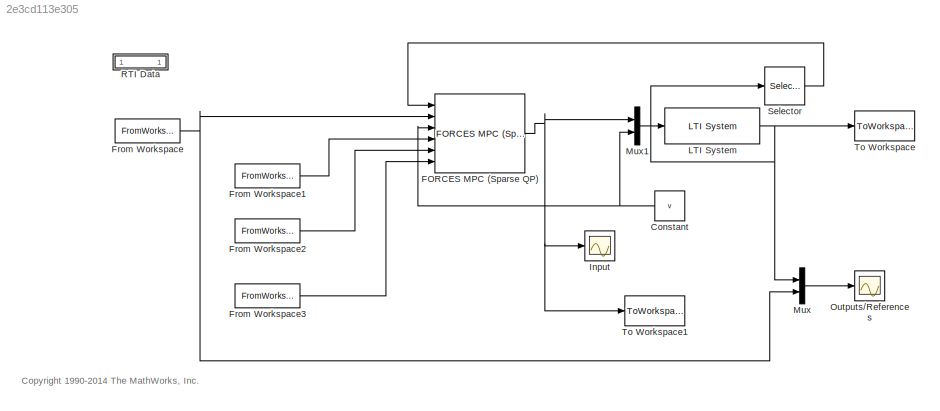
MODEL slx_2e3cd113e305
KIND model
CONFIG AbsTol = auto
CONFIG EnableMultiTasking = off
CONFIG FixedStep = Ts
CONFIG MaxStep = auto
CONFIG MinStep = auto
CONFIG PostLoadFcn = , if any(exist('dsrtsu_mdlpostloadfcn', 'file') == [2, 3, 6]), try dsrtsu_mdlpostloadfcn('Execute', bdroot); catch fprintf('Error in PostLoadFcn (dsrtsu_mdlpostloadfcn) for model "%s":\n %s\n', bdroot, lasterr); end, end, \n
CONFIG RelTol = 1e-3
CONFIG SampleTimeConstraint = Unconstrained
CONFIG Solver = ode3
CONFIG SolverName = ode3
CONFIG StartTime = 0.0
CONFIG StopTime = 10
BLOCK [Constant] Constant
  Value = v
BLOCK [Reference] FORCES MPC (Sparse QP)  REF=forceslib/FORCES MPC (Sparse QP)  (lib defined in slx_01065b56049c, slx_1ff7529277ff, +15 more)
  Ports = [6, 1]
  SourceBlock = forceslib/FORCES MPC (Sparse QP)
  SourceProductName = FORCES-PRO MPC Block
  SourceType = ForcesMPC_SparseQP
BLOCK [FromWorkspace] From Workspace
  SampleTime = Ts
  VariableName = r
  ZeroCross = on
BLOCK [FromWorkspace] From Workspace1
  SampleTime = Ts
  VariableName = ywt
  ZeroCross = on
BLOCK [FromWorkspace] From Workspace2
  SampleTime = Ts
  VariableName = duwt
  ZeroCross = on
BLOCK [FromWorkspace] From Workspace3
  SampleTime = Ts
  VariableName = ECRwt
  ZeroCross = on
BLOCK [Scope] Input
  NumInputPorts = 1
  Ports = [1]
  ScopeSpecificationString = Simulink.scopes.TimeScopeBlockCfg('CurrentConfiguration', extmgr.ConfigurationSet(extmgr.Configuration('Core','General UI',true),extmgr.Configuration('Core','Source UI',true),extmgr.Configuration('Sources','WiredSimulink',true,'DataLoggingSaveFormat','Structure','DataLoggingLimitDataPoints',true,'DataLoggingDecimation','1','DataLoggingDecimateData',true),extmgr.Configuration('Visuals','Time Domain...<+1647ch>
BLOCK [Reference] LTI System  REF=cstblocks/LTI System
  Ports = [1, 1]
  SourceBlock = cstblocks/LTI System
  SourceProductBaseCode = CT
  SourceProductName = Control System Toolbox
  SourceType = LTI Block
BLOCK [Mux] Mux
  DisplayOption = bar
  Inputs = 2
  Ports = [2, 1]
BLOCK [Mux] Mux1
  DisplayOption = bar
  Inputs = 2
  Ports = [2, 1]
BLOCK [Scope] Outputs//References
  NumInputPorts = 1
  Ports = [1]
  ScopeSpecificationString = Simulink.scopes.TimeScopeBlockCfg('CurrentConfiguration', extmgr.ConfigurationSet(extmgr.Configuration('Core','General UI',true),extmgr.Configuration('Core','Source UI',true),extmgr.Configuration('Sources','WiredSimulink',true,'DataLoggingSaveFormat','Structure','DataLoggingLimitDataPoints',true,'DataLoggingDecimation','1','DataLoggingDecimateData',true),extmgr.Configuration('Visuals','Time Domain...<+1693ch>
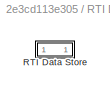
BLOCK [SubSystem] RTI Data
  CopyFcn = if exist('rtidc'), try,  rtidc('DataHostBlockClbCopy', gcbh); catch, disp(['Warning: ''CopyFcn'' for RTI Data block failed: ' lasterr]); end, end,
  DeleteFcn = if exist('rtidc'), try,  rtidc('DataHostBlockClbDelete', gcbh); catch, disp(['Warning: ''DeleteFcn'' for RTI Data block failed: ' lasterr]); end, end,
  LoadFcn = if exist('rtidc'), try,  rtidc('DataHostBlockClbLoad', gcbh); catch, disp(['Warning: ''LoadFcn'' for RTI Data block failed: ' lasterr]); end, end,
  ModelCloseFcn = if exist('rtidc'), try,  rtidc('DataHostBlockClbModelClose', gcbh); catch, disp(['Warning: ''ModelCloseFcn'' for RTI Data block failed: ' lasterr]); end, end,
  NameChangeFcn = if exist('rtidc'), try,  rtidc('DataHostBlockClbNameChange', gcbh); catch, disp(['Warning: ''NameChangeFcn'' for RTI Data block failed: ' lasterr]); end, end,
  Ports = []
  PostSaveFcn = if exist('rtidc'), try,  rtidc('DataHostBlockClbPostSave', gcbh); catch, disp(['Warning: ''PostSaveFcn'' for RTI Data block failed: ' lasterr]); end, end,
  PreSaveFcn = if exist('rtidc'), try,  rtidc('DataHostBlockClbPreSave', gcbh); catch, disp(['Warning: ''PreSaveFcn'' for RTI Data block failed: ' lasterr]); end, end,
  RequestExecContextInheritance = off
  Tag = struct('RTIDataServer',struct('RTIDataServerVs','2','RTIModelDescription','struct(''main'',''forcesmpc_onlinetuning_dSpace_MicroAutoBoxII'',''sub'','''',''isMp'',0)'))
  Variant = off
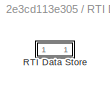
BLOCK [SubSystem] RTI Data/RTI Data Store
  Ports = []
  RequestExecContextInheritance = off
  Tag = struct('private',struct('version',struct('dsVer',uint32(2),'dsVerCreation',uint32(2),'RTI',struct('ver','7.9','type','RTI1401')),'access',struct('type','Model','isPerm',1,'created',['20-Nov-2019 13:32:07'],'modified',['22-Nov-2019 16:48:12'],'location','')),'public',struct('main',struct('data',[]),'sub',struct('name',{{'forcesmpc_onlinetuning_dSpace_MicroAutoBoxII'}},'data',{{struct('TH',struct('t...<+915ch>
  Variant = off
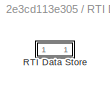
BLOCK [SubSystem] RTI Data/RTI Data Store/RTI Data Store
  Ports = []
  RequestExecContextInheritance = off
  Variant = off
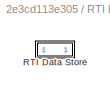
BLOCK [SubSystem] RTI Data/RTI Data Store/RTI Data Store/RTI Data Store
  Ports = []
  RequestExecContextInheritance = off
  Variant = off
BLOCK [SubSystem] RTI Data/RTI Data Store/RTI Data Store/RTI Data Store/RTI Data Store
  Ports = []
  RequestExecContextInheritance = off
  Variant = off
BLOCK [Selector] Selector
  IndexOptions = Index vector (dialog)
  Indices = [1 2 3]
  InputPortWidth = 4
  OutputSizes = 1
  Ports = [1, 1]
BLOCK [ToWorkspace] To Workspace
  MaxDataPoints = Inf
  Ports = [1]
  SampleTime = -1
  Save2DSignal = 3-D array (concatenate along third dimension)
  VariableName = ysim
BLOCK [ToWorkspace] To Workspace1
  MaxDataPoints = Inf
  Ports = [1]
  SampleTime = -1
  Save2DSignal = 3-D array (concatenate along third dimension)
  VariableName = usim
ANNOTATION (root): <copyright redacted>
NET Constant:1 -> FORCES MPC (Sparse QP):3, Mux1:2
NET FORCES MPC (Sparse QP):1 -> Input:1, Mux1:1, To Workspace1:1
LINE From Workspace1:1 -> FORCES MPC (Sparse QP):4
LINE From Workspace2:1 -> FORCES MPC (Sparse QP):5
LINE From Workspace3:1 -> FORCES MPC (Sparse QP):6
NET From Workspace:1 -> FORCES MPC (Sparse QP):2, Mux:2
NET LTI System:1 -> Mux:1, Selector:1, To Workspace:1
LINE Mux1:1 -> LTI System:1
LINE Mux:1 -> Outputs//References:1
LINE Selector:1 -> FORCES MPC (Sparse QP):1
note: NET lines group one-source signal fan-out (src -> all destinations, sorted); 1:1 wires keep LINE
